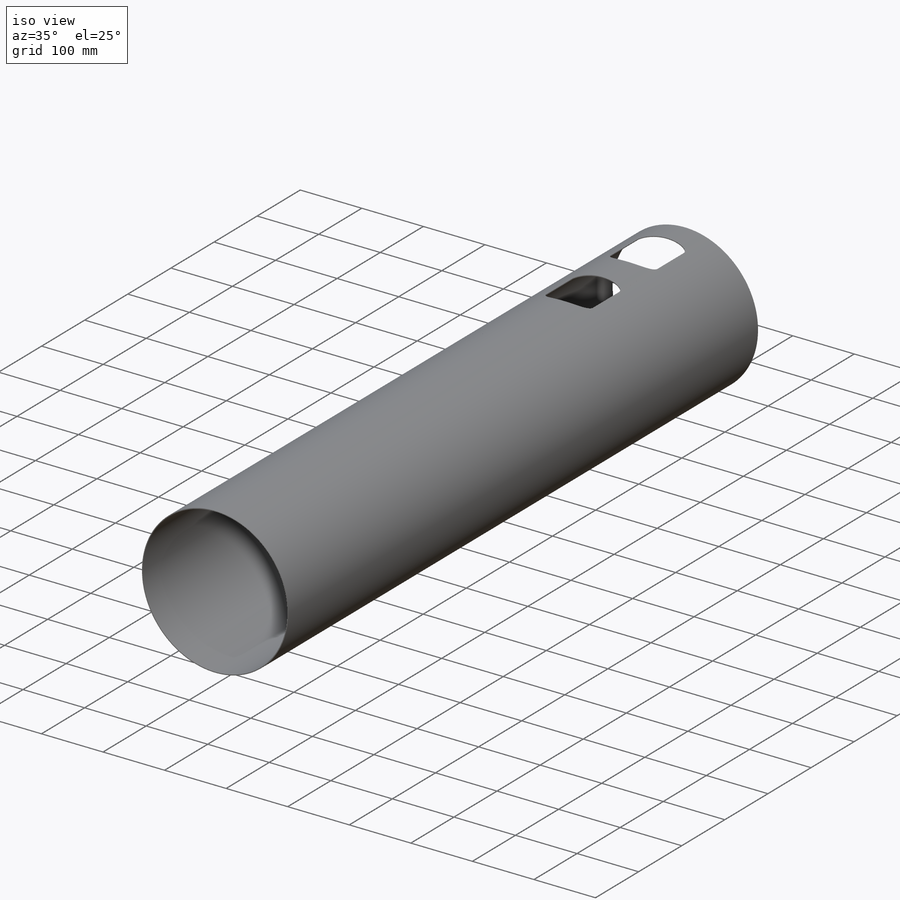
[diagram: iso view]
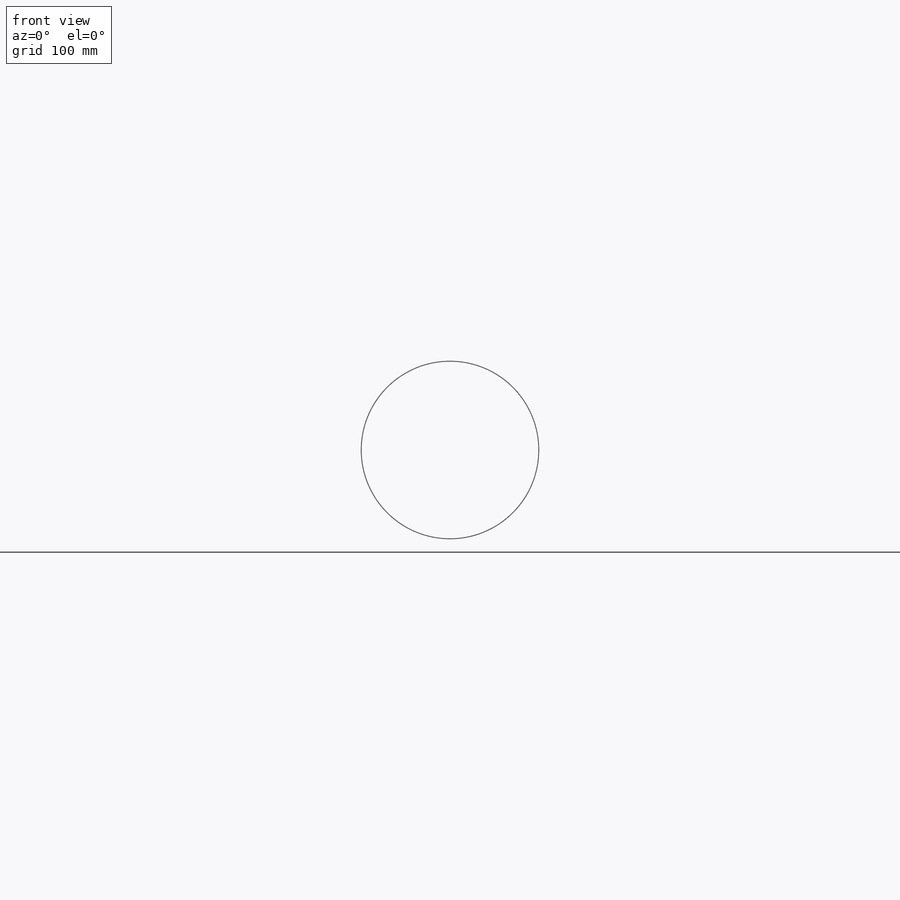
[diagram: front view]
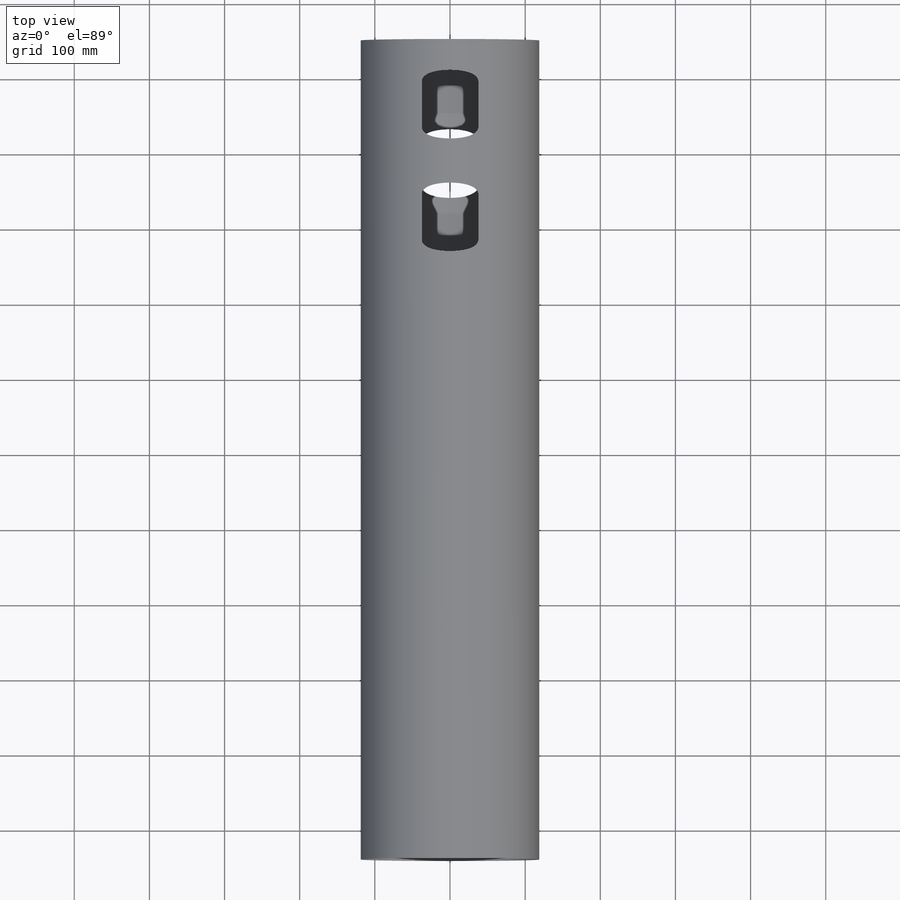
[diagram: top view]
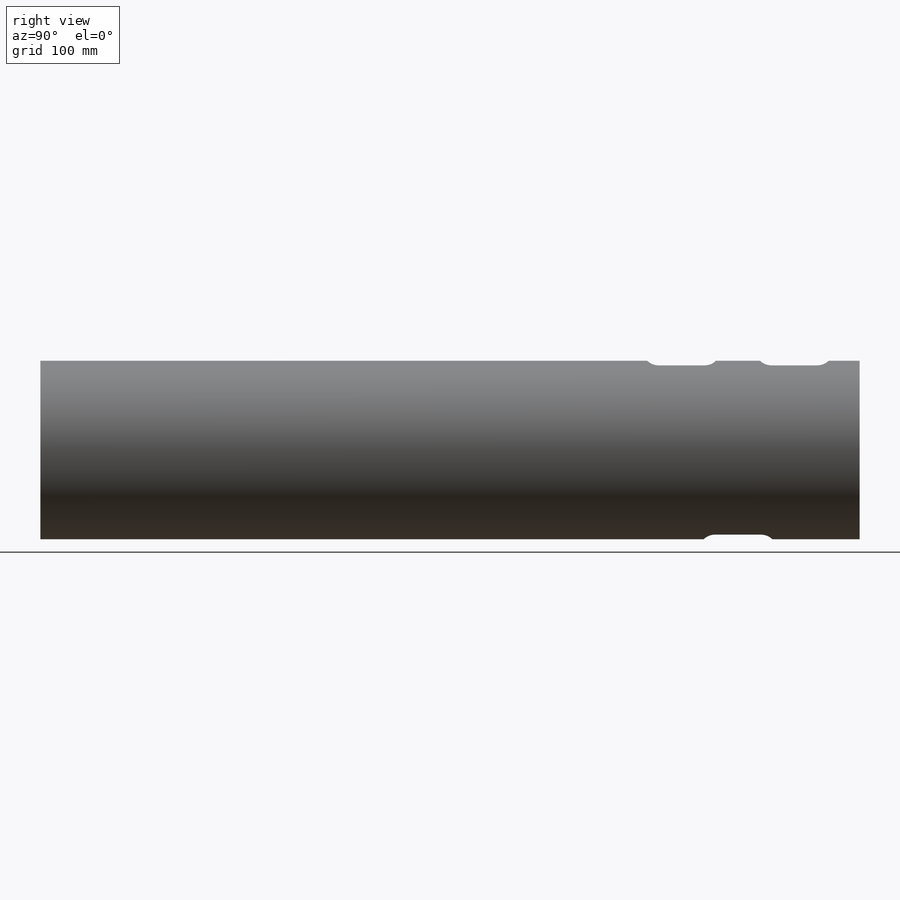
[diagram: right view]
SOLIDWORKS PART (.sldprt)
format: sldprt  version: not decoded by parser v0  size: 770,560 bytes
history: native  units: mm
features: sketch x4, cut_extrude x3, material x1, extrude x1, plane x1 (+11 scaffold rows collapsed)
feature tree (21):
  scaffold x11  (default folders/planes/origin — collapsed)
  material  "Hexcel AS4C (3000 Filaments)"
  sketch  "Sketch1"  dims[c1.D1=~67.958357mm c1.D2=237.5mm c2.D1=1.25mm]
  extrude  "Extrude1"  Depth=540mm
  sketch  "Sketch2"  dims[c1.D1=2.0mm c1.D2=2.0mm c2.D1=0.0mm c2.D2=0.0mm c3.D1=2.0mm c3.D2=2.0mm]
  cut_extrude  "Extrude2"  [1 undecoded]
  sketch  "Sketch3"  dims[D1=2.0mm]
  cut_extrude  "Extrude3"  Depth=183mm
  plane  "IP"  Offset=7.2mm
  sketch  "Sketch4"
  cut_extrude  "Cut-Extrude1"  [1 undecoded]
decode coverage: 5 of 8 modeling features carry decoded parameters
note: ~ marks probable driven/reference dimensions
note: 2 parameter values undecoded
note: suppression state not decoded; provenance and decode notes live in map.json
